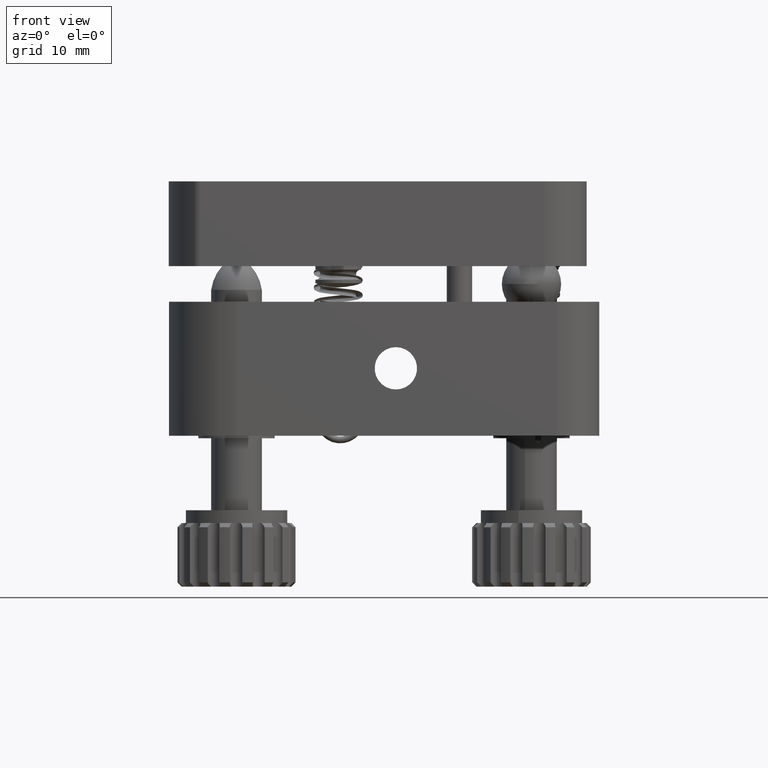
[diagram: clean part render]
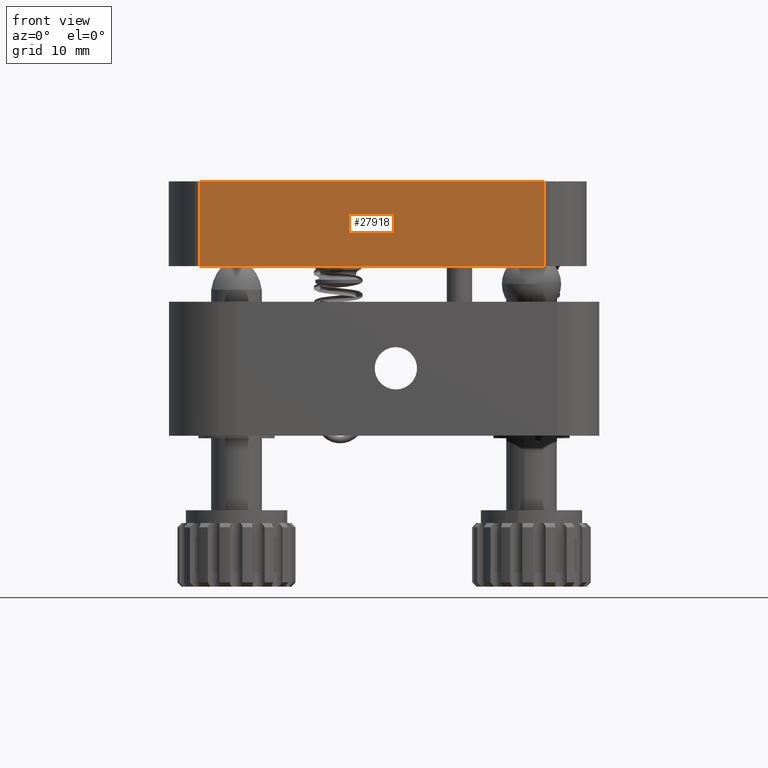
[diagram: same view with one face highlighted and labeled with its STEP entity id]
A machine part, front view. The second image highlights one B-rep face of the part: STEP entity #27918.
In plain terms, the highlighted planar face has unit normal (0, -1, 0).
Its self-contained STEP definition (entity closure, byte-faithful):
#513 = VERTEX_POINT ( 'NONE', #24350 ) ;
#3058 = ORIENTED_EDGE ( 'NONE', *, *, #19760, .F. ) ;
#3942 = VECTOR ( 'NONE', #25760, 1000.000000000000000 ) ;
#6899 = EDGE_CURVE ( 'NONE', #29893, #9619, #14975, .T. ) ;
#7487 = CARTESIAN_POINT ( 'NONE',  ( -4.436190435801630200, 17.41778669584324400, 52.06366457255799000 ) ) ;
#8496 = CARTESIAN_POINT ( 'NONE',  ( -4.436190435801630200, 17.41778669584324400, 42.06366457255799000 ) ) ;
#8582 = DIRECTION ( 'NONE',  ( 6.938018301418278900E-017, -1.000000000000000000, 0.0000000000000000000 ) ) ;
#8789 = VECTOR ( 'NONE', #32618, 1000.000000000000000 ) ;
#8950 = LINE ( 'NONE', #21798, #16000 ) ;
#9619 = VERTEX_POINT ( 'NONE', #22830 ) ;
#10380 = CARTESIAN_POINT ( 'NONE',  ( -4.436190435801630200, 17.41778669584324400, 42.06366457255799000 ) ) ;
#12123 = VECTOR ( 'NONE', #13026, 1000.000000000000000 ) ;
#13026 = DIRECTION ( 'NONE',  ( 0.0000000000000000000, 0.0000000000000000000, 1.000000000000000000 ) ) ;
#13785 = PLANE ( 'NONE',  #28589 ) ;
#14297 = VERTEX_POINT ( 'NONE', #7487 ) ;
#14975 = LINE ( 'NONE', #27485, #8789 ) ;
#16000 = VECTOR ( 'NONE', #19161, 1000.000000000000000 ) ;
#19082 = LINE ( 'NONE', #10380, #12123 ) ;
#19161 = DIRECTION ( 'NONE',  ( 1.000000000000000000, 6.938018301418278900E-017, -0.0000000000000000000 ) ) ;
#19760 = EDGE_CURVE ( 'NONE', #29893, #14297, #19082, .T. ) ;
#21798 = CARTESIAN_POINT ( 'NONE',  ( 36.19393658312051800, 17.41778669584324400, 52.06366457255799000 ) ) ;
#21855 = FACE_OUTER_BOUND ( 'NONE', #29946, .T. ) ;
#22830 = CARTESIAN_POINT ( 'NONE',  ( 36.19393658312051800, 17.41778669584324400, 42.06366457255799000 ) ) ;
#23138 = CARTESIAN_POINT ( 'NONE',  ( 36.19393658312051800, 17.41778669584324400, 42.06366457255799000 ) ) ;
#23939 = ORIENTED_EDGE ( 'NONE', *, *, #29938, .F. ) ;
#24302 = CARTESIAN_POINT ( 'NONE',  ( 36.19393658312051800, 17.41778669584324400, 42.06366457255799000 ) ) ;
#24350 = CARTESIAN_POINT ( 'NONE',  ( 36.19393658312051800, 17.41778669584324400, 52.06366457255799000 ) ) ;
#25652 = ORIENTED_EDGE ( 'NONE', *, *, #26121, .T. ) ;
#25718 = LINE ( 'NONE', #23138, #3942 ) ;
#25760 = DIRECTION ( 'NONE',  ( 0.0000000000000000000, 0.0000000000000000000, 1.000000000000000000 ) ) ;
#26121 = EDGE_CURVE ( 'NONE', #9619, #513, #25718, .T. ) ;
#26932 = DIRECTION ( 'NONE',  ( 1.000000000000000000, 6.938018301418278900E-017, 0.0000000000000000000 ) ) ;
#27485 = CARTESIAN_POINT ( 'NONE',  ( 36.19393658312051800, 17.41778669584324400, 42.06366457255799000 ) ) ;
#27918 = ADVANCED_FACE ( 'NONE', ( #21855 ), #13785, .T. ) ;
#28589 = AXIS2_PLACEMENT_3D ( 'NONE', #24302, #8582, #26932 ) ;
#29472 = ORIENTED_EDGE ( 'NONE', *, *, #6899, .T. ) ;
#29893 = VERTEX_POINT ( 'NONE', #8496 ) ;
#29938 = EDGE_CURVE ( 'NONE', #14297, #513, #8950, .T. ) ;
#29946 = EDGE_LOOP ( 'NONE', ( #23939, #3058, #29472, #25652 ) ) ;
#32618 = DIRECTION ( 'NONE',  ( 1.000000000000000000, 6.938018301418278900E-017, -0.0000000000000000000 ) ) ;